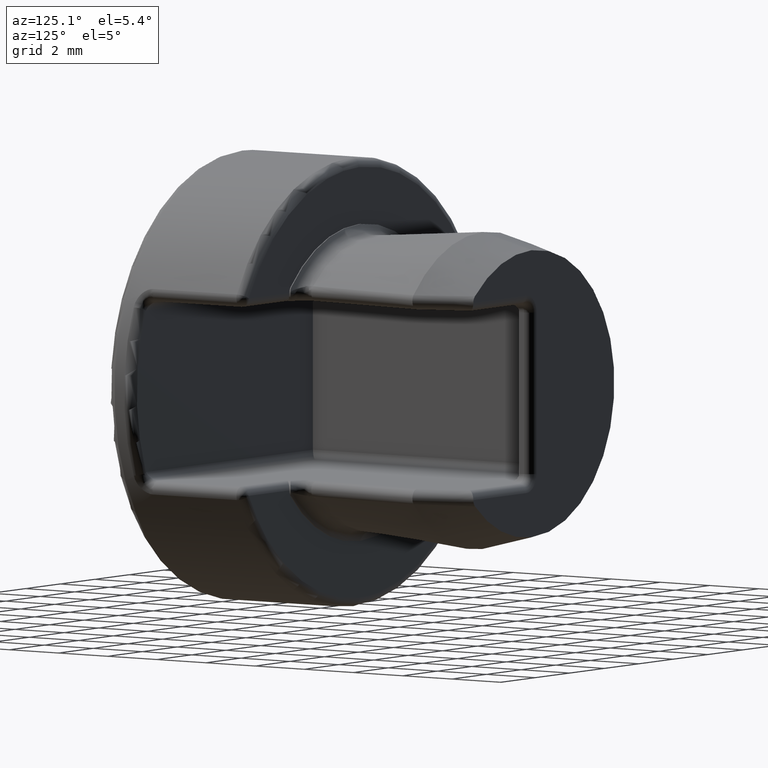
[diagram: clean part render]
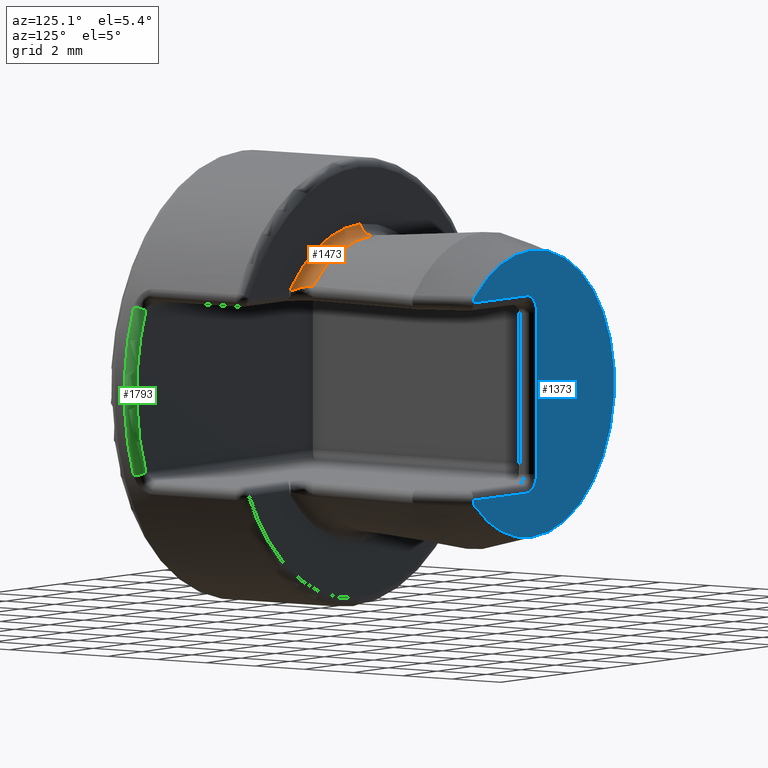
[diagram: same view with three faces highlighted in distinct colors, each labeled with its STEP entity id]
A machine part, auxiliary view with three faces highlighted in distinct colors.
Their STEP definitions:

[orange] entity #1473 — the highlighted toroidal blend (fillet) surface has major radius 5.4403 mm and minor (blend) radius 0.5 mm.
#1319 = EDGE_CURVE ( 'NONE', #1477, #1479, #2036, .T. ) ;
#1320 = ORIENTED_EDGE ( 'NONE', *, *, #1321, .F. ) ;
#1321 = EDGE_CURVE ( 'NONE', #1322, #1479, #2031, .T. ) ;
#1322 = VERTEX_POINT ( 'NONE', #1980 ) ;
#1323 = ORIENTED_EDGE ( 'NONE', *, *, #1324, .F. ) ;
#1324 = EDGE_CURVE ( 'NONE', #1325, #1322, #1979, .T. ) ;
#1325 = VERTEX_POINT ( 'NONE', #1978 ) ;
#1326 = ORIENTED_EDGE ( 'NONE', *, *, #1327, .F. ) ;
#1327 = EDGE_CURVE ( 'NONE', #1328, #1325, #2007, .T. ) ;
#1328 = VERTEX_POINT ( 'NONE', #2006 ) ;
#1329 = ORIENTED_EDGE ( 'NONE', *, *, #1336, .F. ) ;
#1336 = EDGE_CURVE ( 'NONE', #1478, #1328, #2113, .T. ) ;
#1473 = ADVANCED_FACE ( 'NONE', ( #2843 ), #2815, .F. ) ;
#1474 = EDGE_LOOP ( 'NONE', ( #1475, #1517, #1320, #1323, #1326, #1329 ) ) ;
#1475 = ORIENTED_EDGE ( 'NONE', *, *, #1476, .F. ) ;
#1476 = EDGE_CURVE ( 'NONE', #1477, #1478, #2791, .T. ) ;
#1477 = VERTEX_POINT ( 'NONE', #2786 ) ;
#1478 = VERTEX_POINT ( 'NONE', #2785 ) ;
#1479 = VERTEX_POINT ( 'NONE', #2827 ) ;
#1517 = ORIENTED_EDGE ( 'NONE', *, *, #1319, .T. ) ;
#1977 = CARTESIAN_POINT ( 'NONE',  ( 4.048767155311456800, 5.043781034992338000, 3.366927858065560400 ) ) ;
#1978 = CARTESIAN_POINT ( 'NONE',  ( 4.048767155311456800, 5.043781034992338000, 3.366927858065560400 ) ) ;
#1979 = B_SPLINE_CURVE_WITH_KNOTS ( 'NONE', 3,
 ( #1977, #2011, #2010, #2009 ),
 .UNSPECIFIED., .F., .F.,
 ( 4, 4 ),
 ( 0.0000000000000000000, 0.0001482829738860400000 ),
 .UNSPECIFIED. ) ;
#1980 = CARTESIAN_POINT ( 'NONE',  ( 3.981707673850505700, 5.032435404068542600, 3.497999999999999800 ) ) ;
#1981 = DIRECTION ( 'NONE',  ( 0.0000000000000000000, 0.0000000000000000000, -1.000000000000000000 ) ) ;
#2001 = CARTESIAN_POINT ( 'NONE',  ( 3.561959261924411400, 5.294504946920342000, 3.490384203538447600 ) ) ;
#2002 = CARTESIAN_POINT ( 'NONE',  ( 3.492989421247316300, 5.397633773405743800, 3.508242235659521800 ) ) ;
#2003 = CARTESIAN_POINT ( 'NONE',  ( 3.473427982035824300, 5.454823513553863600, 3.513321415680089800 ) ) ;
#2004 = CARTESIAN_POINT ( 'NONE',  ( 3.473143379352815700, 5.512358745922710100, 3.513372626099347400 ) ) ;
#2006 = CARTESIAN_POINT ( 'NONE',  ( 3.473143379352815700, 5.512358745922710100, 3.513372626099347400 ) ) ;
#2007 = B_SPLINE_CURVE_WITH_KNOTS ( 'NONE', 3,
 ( #2004, #2003, #2002, #2001, #2119, #2118, #2117, #2116 ),
 .UNSPECIFIED., .F., .F.,
 ( 4, 2, 2, 4 ),
 ( 0.0000000000000000000, 0.2500000000000004400, 0.5000000000000008900, 1.000000000000000000 ),
 .UNSPECIFIED. ) ;
#2009 = CARTESIAN_POINT ( 'NONE',  ( 3.981707673850505700, 5.032435404068542600, 3.497999999999999800 ) ) ;
#2010 = CARTESIAN_POINT ( 'NONE',  ( 4.014800177301964400, 5.032435404068915700, 3.460331425117323600 ) ) ;
#2011 = CARTESIAN_POINT ( 'NONE',  ( 4.037733251697968500, 5.035462520043840800, 3.415140143479302700 ) ) ;
#2028 = DIRECTION ( 'NONE',  ( 0.0000000000000000000, -1.000000000000000000, 0.0000000000000000000 ) ) ;
#2029 = CARTESIAN_POINT ( 'NONE',  ( 0.0000000000000000000, 5.032435404068169600, 0.0000000000000000000 ) ) ;
#2030 = AXIS2_PLACEMENT_3D ( 'NONE', #2029, #2028, #1981 ) ;
#2031 = CIRCLE ( 'NONE', #2030, 5.300000000000000700 ) ;
#2032 = DIRECTION ( 'NONE',  ( 1.224606353822376500E-016, 0.0000000000000000000, 1.000000000000000000 ) ) ;
#2033 = DIRECTION ( 'NONE',  ( -1.000000000000000000, 0.0000000000000000000, 1.224606353822377300E-016 ) ) ;
#2034 = CARTESIAN_POINT ( 'NONE',  ( 6.662180505563667000E-016, 5.512358648735468800, 5.440262893270912100 ) ) ;
#2035 = AXIS2_PLACEMENT_3D ( 'NONE', #2034, #2033, #2032 ) ;
#2036 = CIRCLE ( 'NONE', #2035, 0.5000000000000004400 ) ;
#2105 = CARTESIAN_POINT ( 'NONE',  ( 3.473143379352815700, 5.512358745922710100, 3.513372626099347400 ) ) ;
#2106 = CARTESIAN_POINT ( 'NONE',  ( 3.473132439527484300, 5.525769510068942100, 3.513385010605248200 ) ) ;
#2107 = CARTESIAN_POINT ( 'NONE',  ( 3.474138217338848200, 5.539174354409666100, 3.513105394795804400 ) ) ;
#2108 = CARTESIAN_POINT ( 'NONE',  ( 3.476230303736613300, 5.552489933848405300, 3.512543441404111500 ) ) ;
#2113 = B_SPLINE_CURVE_WITH_KNOTS ( 'NONE', 3,
 ( #2108, #2107, #2106, #2105 ),
 .UNSPECIFIED., .F., .F.,
 ( 4, 4 ),
 ( 0.0000000000000000000, 1.000000000000000000 ),
 .UNSPECIFIED. ) ;
#2116 = CARTESIAN_POINT ( 'NONE',  ( 4.048767155311456800, 5.043781034992338000, 3.366927858065560400 ) ) ;
#2117 = CARTESIAN_POINT ( 'NONE',  ( 3.909780138539006500, 5.075390413562107700, 3.401280084362036800 ) ) ;
#2118 = CARTESIAN_POINT ( 'NONE',  ( 3.774395366035352900, 5.130039714894000900, 3.435727285847169000 ) ) ;
#2119 = CARTESIAN_POINT ( 'NONE',  ( 3.610030286850384900, 5.248580977177142300, 3.477955600982295200 ) ) ;
#2785 = CARTESIAN_POINT ( 'NONE',  ( 3.476230303736613300, 5.552489933848405300, 3.512543441404111500 ) ) ;
#2786 = CARTESIAN_POINT ( 'NONE',  ( 0.0000000000000000000, 5.552489933847937200, 4.941876015479351700 ) ) ;
#2787 = DIRECTION ( 'NONE',  ( 0.0000000000000000000, 0.0000000000000000000, 1.000000000000000000 ) ) ;
#2788 = DIRECTION ( 'NONE',  ( 0.0000000000000000000, 1.000000000000000000, 0.0000000000000000000 ) ) ;
#2789 = CARTESIAN_POINT ( 'NONE',  ( 0.0000000000000000000, 5.552489933847937200, 0.0000000000000000000 ) ) ;
#2790 = AXIS2_PLACEMENT_3D ( 'NONE', #2789, #2788, #2787 ) ;
#2791 = CIRCLE ( 'NONE', #2790, 4.941876015479351700 ) ;
#2814 = CARTESIAN_POINT ( 'NONE',  ( 0.0000000000000000000, 5.512358648735468800, 0.0000000000000000000 ) ) ;
#2815 = TOROIDAL_SURFACE ( 'NONE', #2833, 5.440262893270912100, 0.5000000000000000000 ) ;
#2827 = CARTESIAN_POINT ( 'NONE',  ( 6.490413675258599900E-016, 5.032435404068169600, 5.300000000000000700 ) ) ;
#2831 = DIRECTION ( 'NONE',  ( 0.0000000000000000000, 0.0000000000000000000, -1.000000000000000000 ) ) ;
#2832 = DIRECTION ( 'NONE',  ( 0.0000000000000000000, -1.000000000000000000, 0.0000000000000000000 ) ) ;
#2833 = AXIS2_PLACEMENT_3D ( 'NONE', #2814, #2832, #2831 ) ;
#2843 = FACE_OUTER_BOUND ( 'NONE', #1474, .T. ) ;

[blue] entity #1373 — the highlighted planar face has unit normal (0, 1, 0).
#1232 = CARTESIAN_POINT ( 'NONE',  ( 3.270898875128518800, 12.00000000867891700, -3.513007353754672200 ) ) ;
#1233 = B_SPLINE_CURVE_WITH_KNOTS ( 'NONE', 3,
 ( #1232, #1236, #1235, #1234 ),
 .UNSPECIFIED., .F., .F.,
 ( 4, 4 ),
 ( 1.226634733346699300E-018, 0.0002383663195631306800 ),
 .UNSPECIFIED. ) ;
#1234 = CARTESIAN_POINT ( 'NONE',  ( 3.365406837207824500, 11.99999560284615500, -3.300000000789896900 ) ) ;
#1235 = CARTESIAN_POINT ( 'NONE',  ( 3.365396886862285000, 12.00000000000000000, -3.380617931813461900 ) ) ;
#1236 = CARTESIAN_POINT ( 'NONE',  ( 3.329845273974121800, 11.99999999999999500, -3.458120296909568100 ) ) ;
#1238 = CARTESIAN_POINT ( 'NONE',  ( 3.365406837207824500, 11.99999560284615500, -3.300000000789896900 ) ) ;
#1268 = EDGE_CURVE ( 'NONE', #1269, #1277, #1717, .T. ) ;
#1269 = VERTEX_POINT ( 'NONE', #1713 ) ;
#1277 = VERTEX_POINT ( 'NONE', #1708 ) ;
#1301 = VERTEX_POINT ( 'NONE', #2092 ) ;
#1309 = EDGE_CURVE ( 'NONE', #1339, #1269, #2078, .T. ) ;
#1335 = VERTEX_POINT ( 'NONE', #2005 ) ;
#1339 = VERTEX_POINT ( 'NONE', #2025 ) ;
#1373 = ADVANCED_FACE ( 'NONE', ( #2202 ), #2182, .T. ) ;
#1374 = EDGE_LOOP ( 'NONE', ( #1439, #1433, #1634, #1527, #1521, #1520, #1530, #1524, #1528, #1529 ) ) ;
#1384 = VERTEX_POINT ( 'NONE', #2310 ) ;
#1388 = EDGE_CURVE ( 'NONE', #1301, #1384, #2290, .T. ) ;
#1399 = EDGE_CURVE ( 'NONE', #1335, #1301, #2394, .T. ) ;
#1403 = EDGE_CURVE ( 'NONE', #1404, #1339, #2524, .T. ) ;
#1404 = VERTEX_POINT ( 'NONE', #2354 ) ;
#1405 = EDGE_CURVE ( 'NONE', #1440, #1384, #2518, .T. ) ;
#1432 = EDGE_CURVE ( 'NONE', #1404, #1440, #1233, .T. ) ;
#1433 = ORIENTED_EDGE ( 'NONE', *, *, #1403, .T. ) ;
#1439 = ORIENTED_EDGE ( 'NONE', *, *, #1432, .F. ) ;
#1440 = VERTEX_POINT ( 'NONE', #1238 ) ;
#1518 = EDGE_CURVE ( 'NONE', #1531, #1523, #2943, .T. ) ;
#1519 = EDGE_CURVE ( 'NONE', #1335, #1531, #2946, .T. ) ;
#1520 = ORIENTED_EDGE ( 'NONE', *, *, #1518, .F. ) ;
#1521 = ORIENTED_EDGE ( 'NONE', *, *, #1522, .F. ) ;
#1522 = EDGE_CURVE ( 'NONE', #1523, #1277, #2955, .T. ) ;
#1523 = VERTEX_POINT ( 'NONE', #2960 ) ;
#1524 = ORIENTED_EDGE ( 'NONE', *, *, #1399, .T. ) ;
#1527 = ORIENTED_EDGE ( 'NONE', *, *, #1268, .T. ) ;
#1528 = ORIENTED_EDGE ( 'NONE', *, *, #1388, .T. ) ;
#1529 = ORIENTED_EDGE ( 'NONE', *, *, #1405, .F. ) ;
#1530 = ORIENTED_EDGE ( 'NONE', *, *, #1519, .F. ) ;
#1531 = VERTEX_POINT ( 'NONE', #3012 ) ;
#1634 = ORIENTED_EDGE ( 'NONE', *, *, #1309, .T. ) ;
#1708 = CARTESIAN_POINT ( 'NONE',  ( 3.270898875127918000, 12.00000000867908600, 3.513007353755174000 ) ) ;
#1713 = CARTESIAN_POINT ( 'NONE',  ( 5.878110498333711700E-016, 12.00000000005729800, 4.799999999988813200 ) ) ;
#1714 = DIRECTION ( 'NONE',  ( 0.0000000000000000000, 0.0000000000000000000, -1.000000000000000000 ) ) ;
#1715 = DIRECTION ( 'NONE',  ( -0.0000000000000000000, 1.000000000000000000, -0.0000000000000000000 ) ) ;
#1716 = AXIS2_PLACEMENT_3D ( 'NONE', #1939, #1715, #1714 ) ;
#1717 = CIRCLE ( 'NONE', #1716, 4.799999999988813200 ) ;
#1939 = CARTESIAN_POINT ( 'NONE',  ( 0.0000000000000000000, 12.00000000005729800, 0.0000000000000000000 ) ) ;
#1993 = DIRECTION ( 'NONE',  ( 0.0000000000000000000, 0.0000000000000000000, -1.000000000000000000 ) ) ;
#1994 = DIRECTION ( 'NONE',  ( -0.0000000000000000000, 1.000000000000000000, -0.0000000000000000000 ) ) ;
#1995 = CARTESIAN_POINT ( 'NONE',  ( 0.0000000000000000000, 12.00000000005729800, 0.0000000000000000000 ) ) ;
#1996 = AXIS2_PLACEMENT_3D ( 'NONE', #1995, #1994, #1993 ) ;
#2005 = CARTESIAN_POINT ( 'NONE',  ( -0.2999999999999999300, 12.00000000000000000, 2.700000000000001100 ) ) ;
#2025 = CARTESIAN_POINT ( 'NONE',  ( 0.0000000000000000000, 12.00000000005729800, -4.799999999988813200 ) ) ;
#2078 = CIRCLE ( 'NONE', #1996, 4.799999999988813200 ) ;
#2092 = CARTESIAN_POINT ( 'NONE',  ( -0.2999999999999999300, 12.00000000000000200, -2.700000000000001100 ) ) ;
#2178 = DIRECTION ( 'NONE',  ( 0.0000000000000000000, -0.0000000000000000000, 1.000000000000000000 ) ) ;
#2179 = DIRECTION ( 'NONE',  ( 0.0000000000000000000, 1.000000000000000000, 0.0000000000000000000 ) ) ;
#2180 = CARTESIAN_POINT ( 'NONE',  ( 0.0000000000000000000, 12.00000000000000000, 0.0000000000000000000 ) ) ;
#2181 = AXIS2_PLACEMENT_3D ( 'NONE', #2180, #2179, #2178 ) ;
#2182 = PLANE ( 'NONE',  #2181 ) ;
#2202 = FACE_OUTER_BOUND ( 'NONE', #1374, .T. ) ;
#2266 = CARTESIAN_POINT ( 'NONE',  ( 0.2999999999999999900, 12.00000000000000200, -3.300000000000000700 ) ) ;
#2267 = CARTESIAN_POINT ( 'NONE',  ( 0.2231822770943198100, 12.00000000000000200, -3.299864154326531900 ) ) ;
#2268 = CARTESIAN_POINT ( 'NONE',  ( 0.1495633351819453400, 12.00000000000000200, -3.285821814539017400 ) ) ;
#2269 = CARTESIAN_POINT ( 'NONE',  ( 0.06153813403310920400, 12.00000000000000000, -3.250885772162070500 ) ) ;
#2270 = CARTESIAN_POINT ( 'NONE',  ( 0.04107497074942043100, 12.00000000000000000, -3.241662561109643500 ) ) ;
#2271 = CARTESIAN_POINT ( 'NONE',  ( 0.004792622814959519000, 11.99999999999999300, -3.222855970527636500 ) ) ;
#2272 = CARTESIAN_POINT ( 'NONE',  ( -0.04784504350773662700, 12.00000000000000400, -3.192049913600441900 ) ) ;
#2273 = CARTESIAN_POINT ( 'NONE',  ( -0.09512514309344781400, 12.00000000000000200, -3.153455343510684900 ) ) ;
#2275 = CARTESIAN_POINT ( 'NONE',  ( -0.1825419199488896900, 12.00000000000000400, -3.065881519114420900 ) ) ;
#2276 = CARTESIAN_POINT ( 'NONE',  ( -0.2275745714102513400, 12.00000000000000000, -2.997581865596298000 ) ) ;
#2277 = CARTESIAN_POINT ( 'NONE',  ( -0.2654475829442598000, 12.00000000000000200, -2.901675565772332100 ) ) ;
#2278 = CARTESIAN_POINT ( 'NONE',  ( -0.2709785176142389100, 12.00000000000000000, -2.885290801522704600 ) ) ;
#2279 = CARTESIAN_POINT ( 'NONE',  ( -0.2814764686982952900, 12.00000000000000000, -2.849191871561813200 ) ) ;
#2280 = CARTESIAN_POINT ( 'NONE',  ( -0.2946158094316552700, 12.00000000000000000, -2.794510570874002600 ) ) ;
#2281 = CARTESIAN_POINT ( 'NONE',  ( -0.2999323924868417800, 12.00000000000000500, -2.738230552946780500 ) ) ;
#2282 = CARTESIAN_POINT ( 'NONE',  ( -0.2999999999999999300, 12.00000000000000200, -2.700000000000001100 ) ) ;
#2290 = B_SPLINE_CURVE_WITH_KNOTS ( 'NONE', 3,
 ( #2282, #2281, #2280, #2279, #2278, #2277, #2276, #2275, #2273, #2272, #2271, #2270, #2269, #2268, #2267, #2266 ),
 .UNSPECIFIED., .F., .F.,
 ( 4, 1, 2, 2, 2, 1, 2, 2, 4 ),
 ( 0.0000000000000000000, 0.1250000000000016100, 0.1875000000000016900, 0.2500000000000017800, 0.5000000000000008900, 0.6250000000000003300, 0.6875000000000005600, 0.7500000000000006700, 1.000000000000000000 ),
 .UNSPECIFIED. ) ;
#2310 = CARTESIAN_POINT ( 'NONE',  ( 0.2999999999999999900, 12.00000000000000200, -3.300000000000000700 ) ) ;
#2352 = CARTESIAN_POINT ( 'NONE',  ( 0.0000000000000000000, 12.00000000005729800, 0.0000000000000000000 ) ) ;
#2353 = AXIS2_PLACEMENT_3D ( 'NONE', #2352, #2419, #2418 ) ;
#2354 = CARTESIAN_POINT ( 'NONE',  ( 3.270898875128518800, 12.00000000867891700, -3.513007353754672200 ) ) ;
#2360 = DIRECTION ( 'NONE',  ( -1.000000000000000000, -0.0000000000000000000, -0.0000000000000000000 ) ) ;
#2361 = VECTOR ( 'NONE', #2360, 1000.000000000000000 ) ;
#2394 = LINE ( 'NONE', #2504, #2395 ) ;
#2395 = VECTOR ( 'NONE', #2523, 1000.000000000000000 ) ;
#2418 = DIRECTION ( 'NONE',  ( -3.552713678800500900E-015, 0.0000000000000000000, -1.000000000000000000 ) ) ;
#2419 = DIRECTION ( 'NONE',  ( -0.0000000000000000000, 1.000000000000000000, -0.0000000000000000000 ) ) ;
#2504 = CARTESIAN_POINT ( 'NONE',  ( -0.2999999999999999900, 12.00000000000000000, 0.0000000000000000000 ) ) ;
#2517 = CARTESIAN_POINT ( 'NONE',  ( -3.000000000000000000, 12.00000000000000200, -3.300000000000000700 ) ) ;
#2518 = LINE ( 'NONE', #2517, #2361 ) ;
#2523 = DIRECTION ( 'NONE',  ( -0.0000000000000000000, 0.0000000000000000000, -1.000000000000000000 ) ) ;
#2524 = CIRCLE ( 'NONE', #2353, 4.799999999988813200 ) ;
#2943 = LINE ( 'NONE', #2948, #2947 ) ;
#2944 = CARTESIAN_POINT ( 'NONE',  ( -0.2999999999999999300, 12.00000000000000000, 2.700000000000001100 ) ) ;
#2945 = DIRECTION ( 'NONE',  ( 1.000000000000000000, -0.0000000000000000000, -0.0000000000000000000 ) ) ;
#2946 =( BOUNDED_CURVE ( )  B_SPLINE_CURVE ( 3, ( #2944, #2951, #2950, #2949 ),
 .UNSPECIFIED., .F., .T. ) 
 B_SPLINE_CURVE_WITH_KNOTS ( ( 4, 4 ),
 ( 0.0000000000000000000, 1.000000000000000000 ),
 .UNSPECIFIED. ) 
 CURVE ( )  GEOMETRIC_REPRESENTATION_ITEM ( )  RATIONAL_B_SPLINE_CURVE ( ( 1.000000000000000000, 0.8047378541243649400, 0.8047378541243649400, 1.000000000000000000 ) ) 
 REPRESENTATION_ITEM ( '' )  );
#2947 = VECTOR ( 'NONE', #2945, 1000.000000000000000 ) ;
#2948 = CARTESIAN_POINT ( 'NONE',  ( -3.000000000000000000, 12.00000000000000200, 3.300000000000000700 ) ) ;
#2949 = CARTESIAN_POINT ( 'NONE',  ( 0.2999999999999999300, 12.00000000000000200, 3.300000000000000700 ) ) ;
#2950 = CARTESIAN_POINT ( 'NONE',  ( -0.05147186257614293200, 12.00000000000000400, 3.300000000000000300 ) ) ;
#2951 = CARTESIAN_POINT ( 'NONE',  ( -0.2999999999999999300, 12.00000000000000400, 3.051471862576143700 ) ) ;
#2952 = CARTESIAN_POINT ( 'NONE',  ( 3.365396884177916300, 12.00000000000000500, 3.380577045826503200 ) ) ;
#2954 = CARTESIAN_POINT ( 'NONE',  ( 3.365406837207824100, 11.99999560284615500, 3.300000000789896000 ) ) ;
#2955 = B_SPLINE_CURVE_WITH_KNOTS ( 'NONE', 3,
 ( #2954, #2952, #2999, #3022 ),
 .UNSPECIFIED., .F., .F.,
 ( 4, 4 ),
 ( 0.0000000000000000000, 0.0002382079470564978300 ),
 .UNSPECIFIED. ) ;
#2960 = CARTESIAN_POINT ( 'NONE',  ( 3.365406837207824100, 11.99999560284615500, 3.300000000789896000 ) ) ;
#2999 = CARTESIAN_POINT ( 'NONE',  ( 3.329828571210576200, 12.00000000000000200, 3.458135849449910800 ) ) ;
#3012 = CARTESIAN_POINT ( 'NONE',  ( 0.2999999999999999300, 12.00000000000000200, 3.300000000000000700 ) ) ;
#3022 = CARTESIAN_POINT ( 'NONE',  ( 3.270898875127918000, 12.00000000867908600, 3.513007353755174000 ) ) ;

[green] entity #1793 — the highlighted toroidal blend (fillet) surface has major radius 7.2 mm and minor (blend) radius 0.3 mm.
#637 = CIRCLE ( 'NONE', #649, 0.3000000000000002100 ) ;
#645 = FACE_OUTER_BOUND ( 'NONE', #1794, .T. ) ;
#646 = DIRECTION ( 'NONE',  ( 0.9270248108869578700, 0.0000000000000000000, -0.3750000000000003300 ) ) ;
#647 = DIRECTION ( 'NONE',  ( 0.3750000000000001100, 0.0000000000000000000, 0.9270248108869578700 ) ) ;
#648 = CARTESIAN_POINT ( 'NONE',  ( 6.674578638386097200, 0.7000000000000000700, -2.700000000000001100 ) ) ;
#649 = AXIS2_PLACEMENT_3D ( 'NONE', #648, #647, #646 ) ;
#669 = DIRECTION ( 'NONE',  ( 0.9270248108869588700, 0.0000000000000000000, 0.3749999999999975000 ) ) ;
#670 = DIRECTION ( 'NONE',  ( -0.3749999999999971100, 4.848623848735268600E-015, 0.9270248108869592100 ) ) ;
#671 = CARTESIAN_POINT ( 'NONE',  ( 6.674578638386096300, 0.7000000000000011800, 2.700000000000002000 ) ) ;
#672 = AXIS2_PLACEMENT_3D ( 'NONE', #671, #670, #669 ) ;
#673 = CIRCLE ( 'NONE', #672, 0.2999999999999989900 ) ;
#731 = TOROIDAL_SURFACE ( 'NONE', #819, 7.200000000000001100, 0.2999999999999999900 ) ;
#744 = DIRECTION ( 'NONE',  ( 0.0000000000000000000, 0.0000000000000000000, -1.000000000000000000 ) ) ;
#817 = DIRECTION ( 'NONE',  ( 0.0000000000000000000, -1.000000000000000000, 0.0000000000000000000 ) ) ;
#818 = CARTESIAN_POINT ( 'NONE',  ( 0.0000000000000000000, 0.7000000000000000700, 0.0000000000000000000 ) ) ;
#819 = AXIS2_PLACEMENT_3D ( 'NONE', #818, #817, #744 ) ;
#859 = CARTESIAN_POINT ( 'NONE',  ( 7.384096785705964700, 1.000000000000000000, 0.9460241964264910500 ) ) ;
#860 = CARTESIAN_POINT ( 'NONE',  ( 7.384096785705964700, 1.000000000000000000, -0.9460241964264919400 ) ) ;
#861 = CARTESIAN_POINT ( 'NONE',  ( 6.674578638386095400, 0.9999999999999993300, -2.700000000000000200 ) ) ;
#874 = CARTESIAN_POINT ( 'NONE',  ( 6.674578638386095400, 1.000000000000000000, 2.699999999999999700 ) ) ;
#936 =( BOUNDED_CURVE ( )  B_SPLINE_CURVE ( 3, ( #861, #860, #859, #874 ),
 .UNSPECIFIED., .F., .F. ) 
 B_SPLINE_CURVE_WITH_KNOTS ( ( 4, 4 ),
 ( 0.0000000000000000000, 1.000000000000000000 ),
 .UNSPECIFIED. ) 
 CURVE ( )  GEOMETRIC_REPRESENTATION_ITEM ( )  RATIONAL_B_SPLINE_CURVE ( ( 1.000000000000000000, 0.9513498739246385400, 0.9513498739246385400, 1.000000000000000000 ) ) 
 REPRESENTATION_ITEM ( '' )  );
#1028 = CARTESIAN_POINT ( 'NONE',  ( 6.674578638386095400, 1.000000000000000000, 2.699999999999999700 ) ) ;
#1451 = VERTEX_POINT ( 'NONE', #2724 ) ;
#1453 = EDGE_CURVE ( 'NONE', #1451, #1454, #2225, .T. ) ;
#1454 = VERTEX_POINT ( 'NONE', #2754 ) ;
#1548 = VERTEX_POINT ( 'NONE', #3021 ) ;
#1775 = ORIENTED_EDGE ( 'NONE', *, *, #1897, .T. ) ;
#1776 = ORIENTED_EDGE ( 'NONE', *, *, #1777, .F. ) ;
#1777 = EDGE_CURVE ( 'NONE', #1454, #1932, #673, .T. ) ;
#1778 = ORIENTED_EDGE ( 'NONE', *, *, #1453, .F. ) ;
#1790 = EDGE_CURVE ( 'NONE', #1451, #1548, #637, .T. ) ;
#1793 = ADVANCED_FACE ( 'NONE', ( #645 ), #731, .T. ) ;
#1794 = EDGE_LOOP ( 'NONE', ( #1795, #1775, #1776, #1778 ) ) ;
#1795 = ORIENTED_EDGE ( 'NONE', *, *, #1790, .T. ) ;
#1897 = EDGE_CURVE ( 'NONE', #1548, #1932, #936, .T. ) ;
#1932 = VERTEX_POINT ( 'NONE', #1028 ) ;
#2174 = DIRECTION ( 'NONE',  ( 0.0000000000000000000, 0.0000000000000000000, -1.000000000000000000 ) ) ;
#2183 = CARTESIAN_POINT ( 'NONE',  ( 0.0000000000000000000, 0.7000000000000000700, 0.0000000000000000000 ) ) ;
#2225 = CIRCLE ( 'NONE', #2241, 7.500000000000000000 ) ;
#2241 = AXIS2_PLACEMENT_3D ( 'NONE', #2183, #2255, #2174 ) ;
#2255 = DIRECTION ( 'NONE',  ( 0.0000000000000000000, -1.000000000000000000, 0.0000000000000000000 ) ) ;
#2724 = CARTESIAN_POINT ( 'NONE',  ( 6.952686081652184500, 0.6999999999999994000, -2.812500000000000000 ) ) ;
#2754 = CARTESIAN_POINT ( 'NONE',  ( 6.952686081652182700, 0.7000000000000000700, 2.812500000000000400 ) ) ;
#3021 = CARTESIAN_POINT ( 'NONE',  ( 6.674578638386095400, 0.9999999999999993300, -2.700000000000000200 ) ) ;